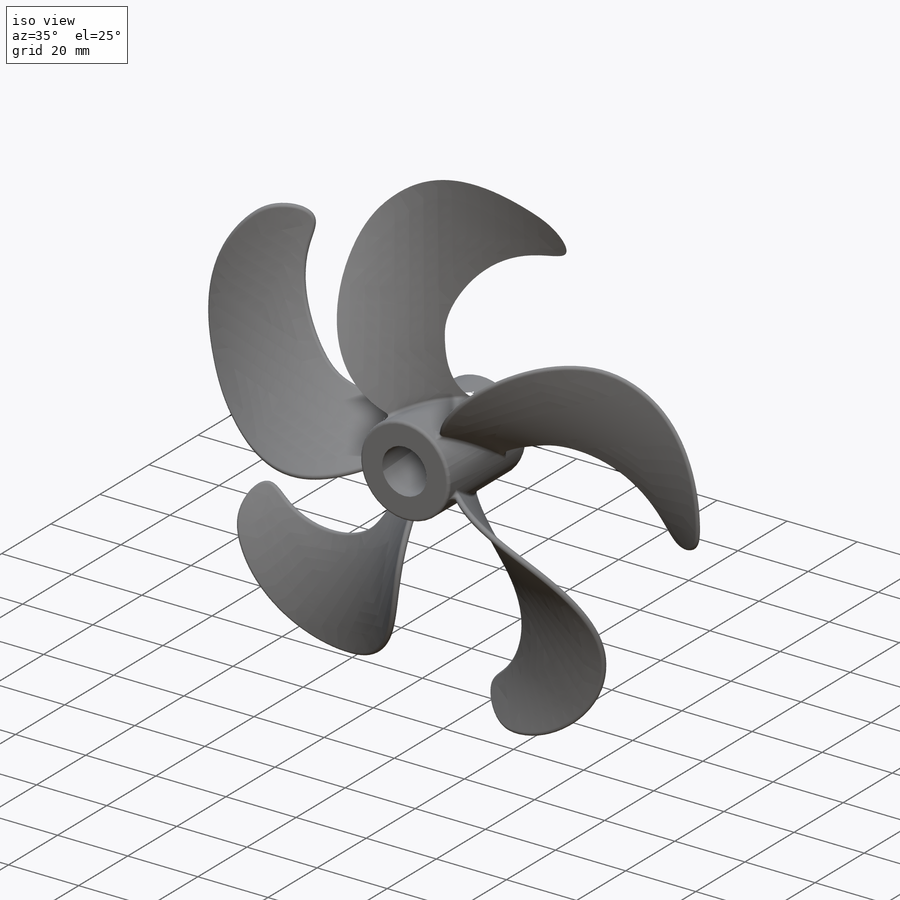
[diagram: iso view]
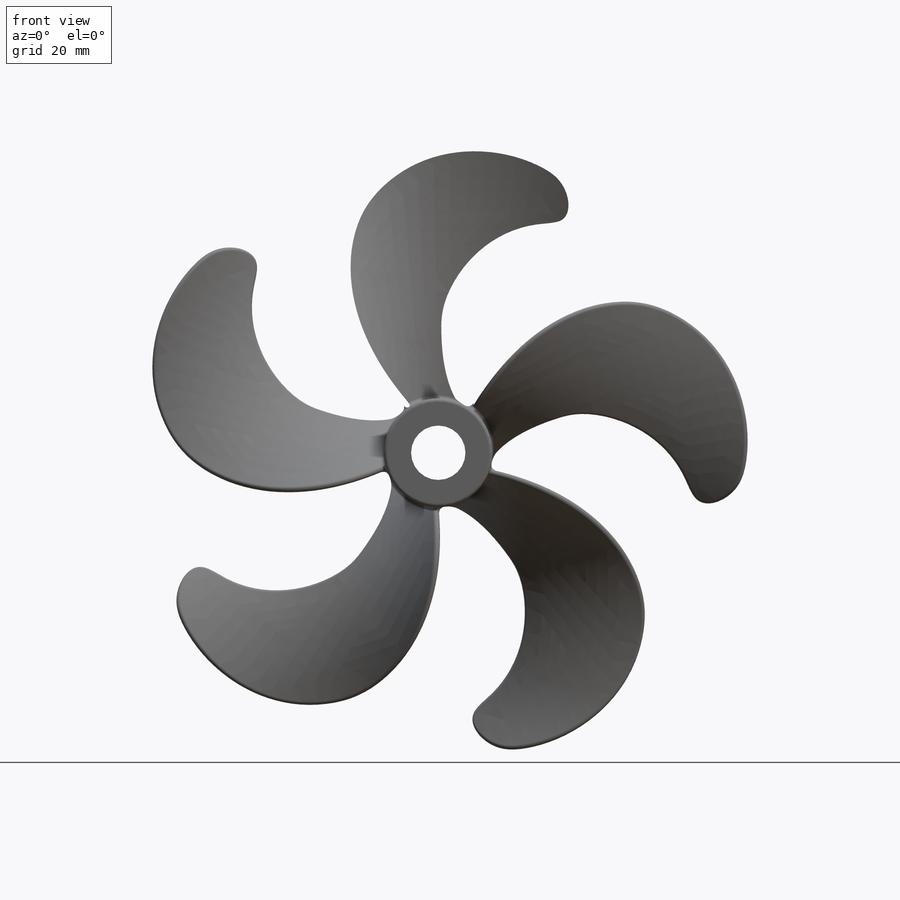
[diagram: front view]
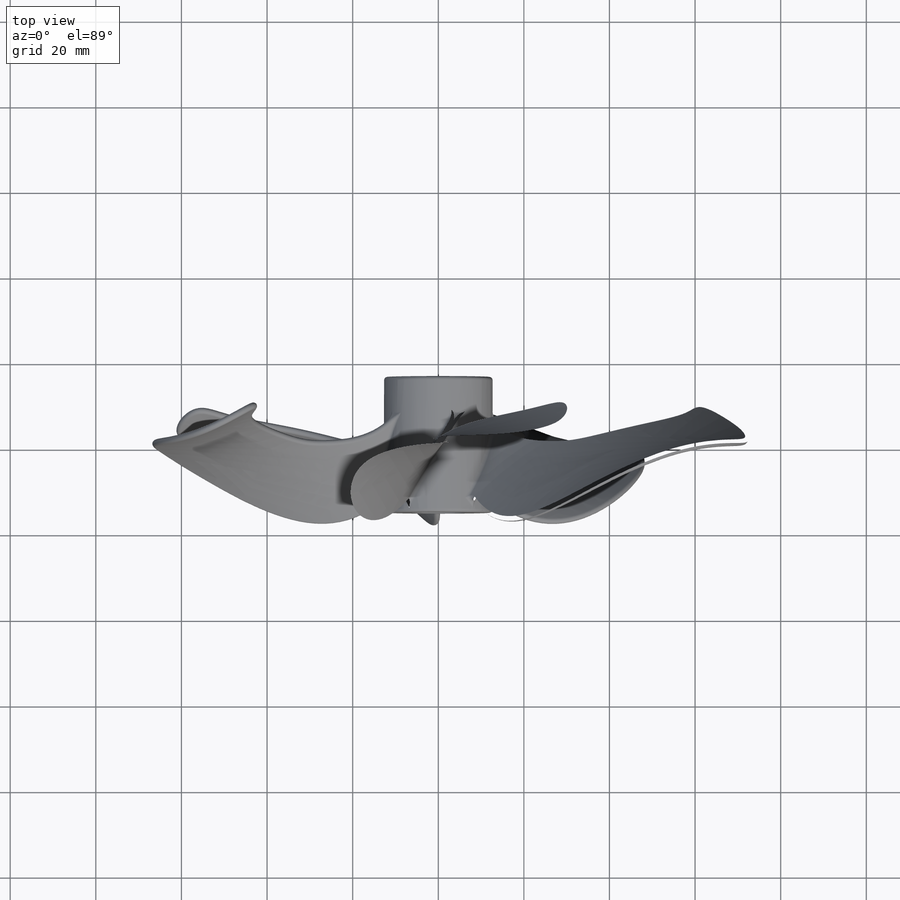
[diagram: top view]
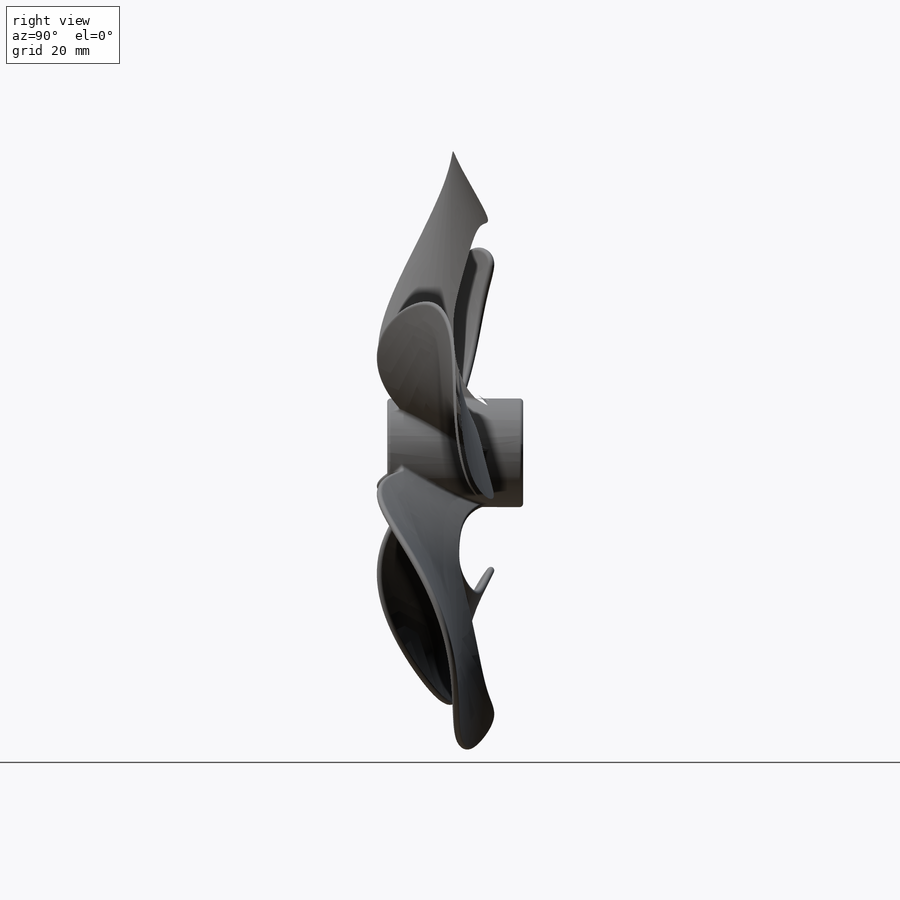
[diagram: right view]
SOLIDWORKS PART (.sldprt)
format: sldprt  version: not decoded by parser v0  size: 1,189,888 bytes
history: native  units: mm
features: sketch x4, plane x3, fillet x2, material x1, extrude x1, pattern_circular x1, boolean_combine x1 (+15 scaffold rows collapsed)
feature tree (28):
  scaffold x15  (default folders/planes/origin — collapsed)
  material  "Material <not specified>"
  sketch  "Sketch1"  dims[D1=12.7mm D2=25.4mm]
  extrude  "Extrude1"  Depth=31.75mm
  plane  "Plane1"  Offset=9.525mm
  sketch  "Sketch2"  dims[c1.D1=27.94mm c2.D1=30.0deg c2.D2=101.6mm]
  plane  "Plane2"  Offset=63.5mm
  sketch  "Sketch3"  dims[D1=101.6mm]
  plane  "Plane3"  Offset=76.2mm
  sketch  "Sketch5"  dims[D1=0.7874mm]
  pattern_circular  "CirPattern6"  Count=5 Angle=360deg
  boolean_combine  "Combine2"
  fillet  "Fillet3"  Radius=0.8128mm
  fillet  "Fillet6"  Radius=0.7874mm
decode coverage: 8 of 9 modeling features carry decoded parameters
note: suppression state not decoded; provenance and decode notes live in map.json
